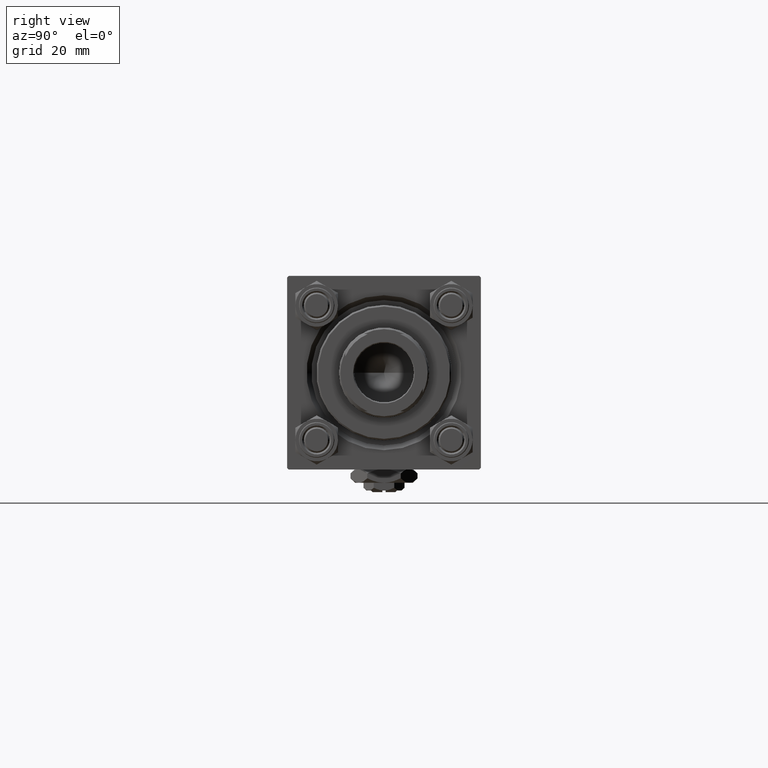
[diagram: clean part render]
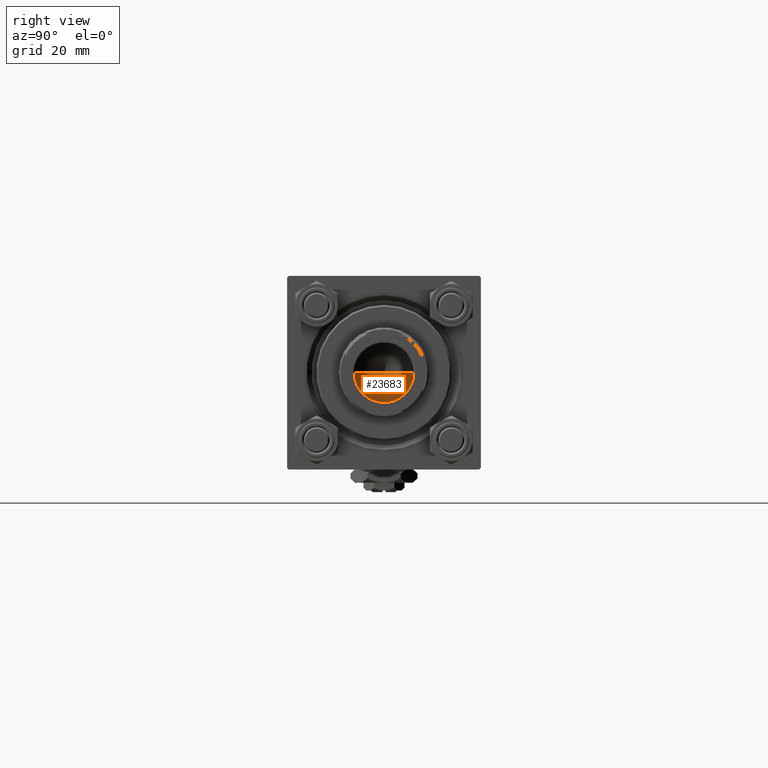
[diagram: same view with one face highlighted and labeled with its STEP entity id]
A machine part, right view. The second image highlights one B-rep face of the part: STEP entity #23683.
In plain terms, the highlighted conical surface has half-angle 59 deg.
Its self-contained STEP definition (entity closure, byte-faithful):
#3619 = DIRECTION ( 'NONE',  ( -0.8571673007021117785, 1.049727191138617956E-16, 0.5150380749100550437 ) ) ;
#5253 = VECTOR ( 'NONE', #25950, 1000.000000000000000 ) ;
#6417 = VERTEX_POINT ( 'NONE', #38798 ) ;
#7901 = FACE_OUTER_BOUND ( 'NONE', #11396, .T. ) ;
#10046 = LINE ( 'NONE', #22819, #5253 ) ;
#10680 = LINE ( 'NONE', #30225, #21398 ) ;
#11396 = EDGE_LOOP ( 'NONE', ( #24946, #21348, #42194 ) ) ;
#12626 = CARTESIAN_POINT ( 'NONE',  ( 0.000000000000000000, 0.000000000000000000, 101.0000000000000000 ) ) ;
#15832 = EDGE_CURVE ( 'NONE', #50019, #6417, #20330, .T. ) ;
#17301 = DIRECTION ( 'NONE',  ( -0.000000000000000000, -0.000000000000000000, 1.000000000000000000 ) ) ;
#18621 = DIRECTION ( 'NONE',  ( -0.000000000000000000, -0.000000000000000000, 1.000000000000000000 ) ) ;
#19058 = VERTEX_POINT ( 'NONE', #32564 ) ;
#20330 = CIRCLE ( 'NONE', #21190, 9.249999999999992895 ) ;
#21190 = AXIS2_PLACEMENT_3D ( 'NONE', #12626, #17301, #32163 ) ;
#21348 = ORIENTED_EDGE ( 'NONE', *, *, #25073, .T. ) ;
#21398 = VECTOR ( 'NONE', #3619, 1000.000000000000000 ) ;
#21820 = CONICAL_SURFACE ( 'NONE', #50965, 9.249999999999992895, 1.029744258676653423 ) ;
#22819 = CARTESIAN_POINT ( 'NONE',  ( 9.249999999999992895, 0.000000000000000000, 101.0000000000000000 ) ) ;
#23683 = ADVANCED_FACE ( 'NONE', ( #7901 ), #21820, .F. ) ;
#24946 = ORIENTED_EDGE ( 'NONE', *, *, #38695, .F. ) ;
#25073 = EDGE_CURVE ( 'NONE', #19058, #50019, #10046, .T. ) ;
#25950 = DIRECTION ( 'NONE',  ( 0.8571673007021117785, 0.000000000000000000, 0.5150380749100550437 ) ) ;
#27676 = CARTESIAN_POINT ( 'NONE',  ( 9.249999999999992895, 0.000000000000000000, 101.0000000000000000 ) ) ;
#30225 = CARTESIAN_POINT ( 'NONE',  ( -9.249999999999992895, 1.132798289211300712E-15, 101.0000000000000000 ) ) ;
#31124 = DIRECTION ( 'NONE',  ( 1.000000000000000000, 0.000000000000000000, 0.000000000000000000 ) ) ;
#32163 = DIRECTION ( 'NONE',  ( 1.000000000000000000, 0.000000000000000000, 0.000000000000000000 ) ) ;
#32564 = CARTESIAN_POINT ( 'NONE',  ( -9.769621978240258809E-15, 0.000000000000000000, 95.44203927399506426 ) ) ;
#38695 = EDGE_CURVE ( 'NONE', #19058, #6417, #10680, .T. ) ;
#38798 = CARTESIAN_POINT ( 'NONE',  ( -9.249999999999992895, 1.132798289211300712E-15, 101.0000000000000000 ) ) ;
#42194 = ORIENTED_EDGE ( 'NONE', *, *, #15832, .T. ) ;
#50019 = VERTEX_POINT ( 'NONE', #27676 ) ;
#50965 = AXIS2_PLACEMENT_3D ( 'NONE', #51208, #18621, #31124 ) ;
#51208 = CARTESIAN_POINT ( 'NONE',  ( 0.000000000000000000, 0.000000000000000000, 101.0000000000000000 ) ) ;